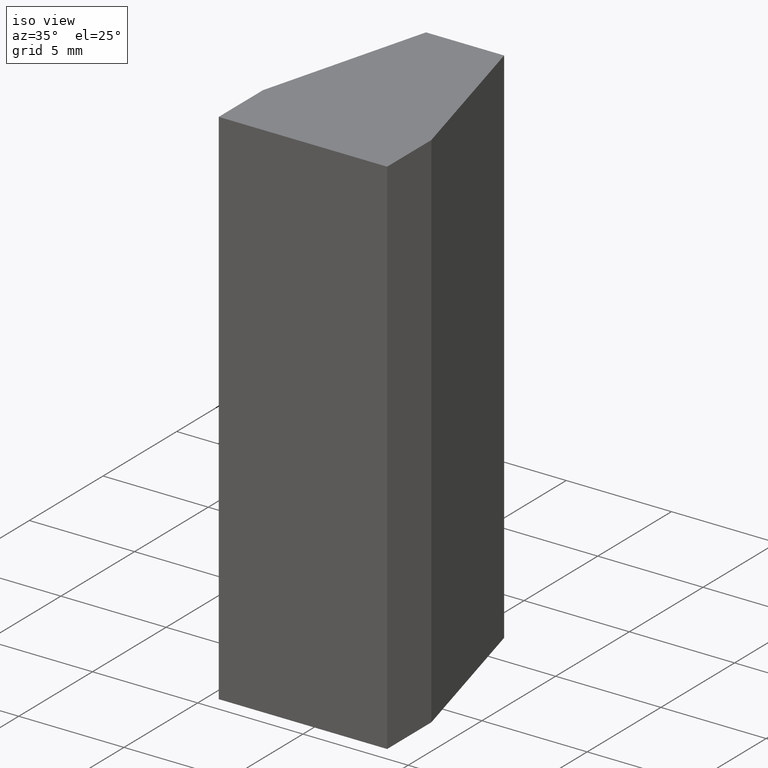
[diagram: clean part render]
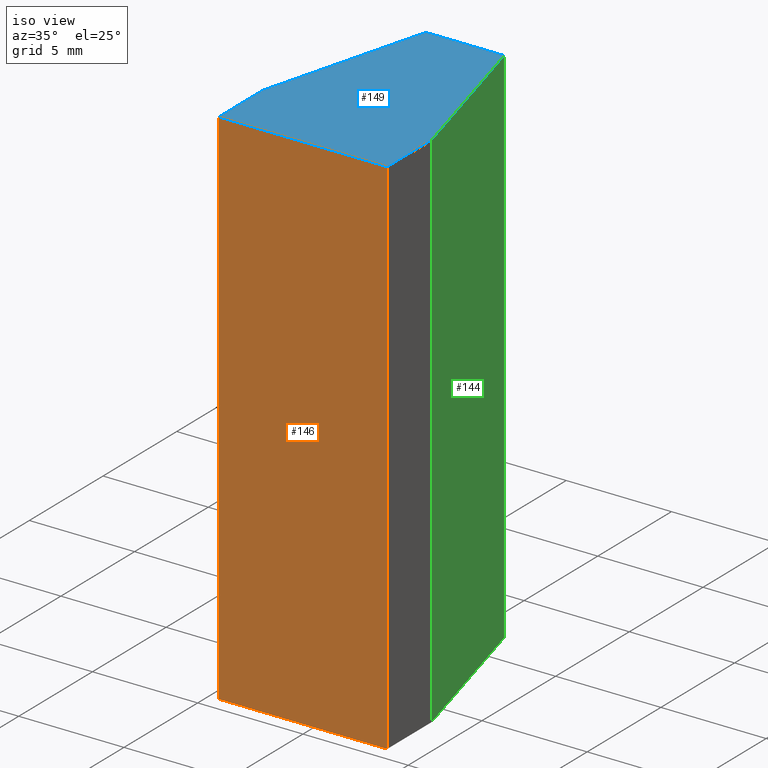
[diagram: same view with three faces highlighted in distinct colors, each labeled with its STEP entity id]
A machine part, iso view with three faces highlighted in distinct colors.
Their STEP definitions:

[orange] entity #146 — the highlighted planar face has unit normal (0, -1, 0).
#20=FACE_OUTER_BOUND('',#28,.T.);
#28=EDGE_LOOP('',(#116,#117,#118,#119));
#36=LINE('',#229,#54);
#44=LINE('',#244,#62);
#45=LINE('',#247,#63);
#46=LINE('',#248,#64);
#54=VECTOR('',#189,10.);
#62=VECTOR('',#203,10.);
#63=VECTOR('',#206,10.);
#64=VECTOR('',#207,10.);
#72=VERTEX_POINT('',#226);
#73=VERTEX_POINT('',#228);
#77=VERTEX_POINT('',#242);
#78=VERTEX_POINT('',#246);
#84=EDGE_CURVE('',#73,#72,#36,.T.);
#92=EDGE_CURVE('',#72,#77,#44,.T.);
#93=EDGE_CURVE('',#77,#78,#45,.T.);
#94=EDGE_CURVE('',#73,#78,#46,.T.);
#116=ORIENTED_EDGE('',*,*,#93,.T.);
#117=ORIENTED_EDGE('',*,*,#94,.F.);
#118=ORIENTED_EDGE('',*,*,#84,.T.);
#119=ORIENTED_EDGE('',*,*,#92,.T.);
#138=PLANE('',#177);
#146=ADVANCED_FACE('',(#20),#138,.T.);
#177=AXIS2_PLACEMENT_3D('',#245,#204,#205);
#189=DIRECTION('',(1.,-1.52486612525011E-16,0.));
#203=DIRECTION('',(0.,0.,1.));
#204=DIRECTION('center_axis',(1.52486612525011E-16,-1.,0.));
#205=DIRECTION('ref_axis',(0.,0.,-1.));
#206=DIRECTION('',(-1.,-1.52486612525011E-16,0.));
#207=DIRECTION('',(0.,0.,1.));
#226=CARTESIAN_POINT('',(4.,-5.48349377874647E-17,-12.5));
#228=CARTESIAN_POINT('',(-4.,-5.48349377874647E-17,-12.5));
#229=CARTESIAN_POINT('',(5.55111512312578E-16,5.55111512312578E-16,-12.5));
#242=CARTESIAN_POINT('',(4.,-5.48349377874647E-17,12.5));
#244=CARTESIAN_POINT('',(4.,-5.48349377874647E-17,0.));
#245=CARTESIAN_POINT('Origin',(5.55111512312578E-16,5.55111512312578E-16,
0.));
#246=CARTESIAN_POINT('',(-4.,-5.48349377874647E-17,12.5));
#247=CARTESIAN_POINT('',(-4.,-5.48349377874647E-17,12.5));
#248=CARTESIAN_POINT('',(-4.,-5.48349377874647E-17,0.));

[blue] entity #149 — the highlighted planar face has unit normal (0, 0, 1).
#23=FACE_OUTER_BOUND('',#31,.T.);
#31=EDGE_LOOP('',(#128,#129,#130,#131,#132,#133));
#38=LINE('',#234,#56);
#41=LINE('',#239,#59);
#43=LINE('',#243,#61);
#45=LINE('',#247,#63);
#47=LINE('',#251,#65);
#49=LINE('',#254,#67);
#56=VECTOR('',#193,10.);
#59=VECTOR('',#198,10.);
#61=VECTOR('',#202,10.);
#63=VECTOR('',#206,10.);
#65=VECTOR('',#210,10.);
#67=VECTOR('',#214,10.);
#74=VERTEX_POINT('',#232);
#75=VERTEX_POINT('',#233);
#76=VERTEX_POINT('',#238);
#77=VERTEX_POINT('',#242);
#78=VERTEX_POINT('',#246);
#79=VERTEX_POINT('',#250);
#86=EDGE_CURVE('',#74,#75,#38,.T.);
#89=EDGE_CURVE('',#75,#76,#41,.T.);
#91=EDGE_CURVE('',#76,#77,#43,.T.);
#93=EDGE_CURVE('',#77,#78,#45,.T.);
#95=EDGE_CURVE('',#78,#79,#47,.T.);
#97=EDGE_CURVE('',#79,#74,#49,.T.);
#128=ORIENTED_EDGE('',*,*,#86,.F.);
#129=ORIENTED_EDGE('',*,*,#97,.F.);
#130=ORIENTED_EDGE('',*,*,#95,.F.);
#131=ORIENTED_EDGE('',*,*,#93,.F.);
#132=ORIENTED_EDGE('',*,*,#91,.F.);
#133=ORIENTED_EDGE('',*,*,#89,.F.);
#141=PLANE('',#180);
#149=ADVANCED_FACE('',(#23),#141,.T.);
#180=AXIS2_PLACEMENT_3D('',#255,#215,#216);
#193=DIRECTION('',(1.,0.,0.));
#198=DIRECTION('',(0.258819045102521,-0.965925826289068,0.));
#202=DIRECTION('',(-1.85037170770859E-16,-1.,0.));
#206=DIRECTION('',(-1.,-1.52486612525011E-16,0.));
#210=DIRECTION('',(-1.85037170770859E-16,1.,0.));
#214=DIRECTION('',(0.258819045102521,0.965925826289068,0.));
#215=DIRECTION('center_axis',(0.,0.,1.));
#216=DIRECTION('ref_axis',(1.,0.,0.));
#232=CARTESIAN_POINT('',(-1.85640646055102,11.,12.5));
#233=CARTESIAN_POINT('',(1.85640646055102,11.,12.5));
#234=CARTESIAN_POINT('',(1.85640646055102,11.,12.5));
#238=CARTESIAN_POINT('',(4.,3.,12.5));
#239=CARTESIAN_POINT('',(4.,3.,12.5));
#242=CARTESIAN_POINT('',(4.,-5.48349377874647E-17,12.5));
#243=CARTESIAN_POINT('',(4.,-5.48349377874647E-17,12.5));
#246=CARTESIAN_POINT('',(-4.,-5.48349377874647E-17,12.5));
#247=CARTESIAN_POINT('',(-4.,-5.48349377874647E-17,12.5));
#250=CARTESIAN_POINT('',(-4.,3.,12.5));
#251=CARTESIAN_POINT('',(-4.,3.,12.5));
#254=CARTESIAN_POINT('',(-1.85640646055102,11.,12.5));
#255=CARTESIAN_POINT('Origin',(-1.47451495458029E-16,4.83679298457776,12.5));

[green] entity #144 — the highlighted planar face has unit normal (0.9659, 0.2588, 0).
#18=FACE_OUTER_BOUND('',#26,.T.);
#26=EDGE_LOOP('',(#108,#109,#110,#111));
#34=LINE('',#225,#52);
#39=LINE('',#235,#57);
#41=LINE('',#239,#59);
#42=LINE('',#240,#60);
#52=VECTOR('',#187,10.);
#57=VECTOR('',#194,10.);
#59=VECTOR('',#198,10.);
#60=VECTOR('',#199,10.);
#70=VERTEX_POINT('',#222);
#71=VERTEX_POINT('',#224);
#75=VERTEX_POINT('',#233);
#76=VERTEX_POINT('',#238);
#82=EDGE_CURVE('',#71,#70,#34,.T.);
#87=EDGE_CURVE('',#70,#75,#39,.T.);
#89=EDGE_CURVE('',#75,#76,#41,.T.);
#90=EDGE_CURVE('',#71,#76,#42,.T.);
#108=ORIENTED_EDGE('',*,*,#89,.T.);
#109=ORIENTED_EDGE('',*,*,#90,.F.);
#110=ORIENTED_EDGE('',*,*,#82,.T.);
#111=ORIENTED_EDGE('',*,*,#87,.T.);
#136=PLANE('',#175);
#144=ADVANCED_FACE('',(#18),#136,.T.);
#175=AXIS2_PLACEMENT_3D('',#237,#196,#197);
#187=DIRECTION('',(-0.258819045102521,0.965925826289068,0.));
#194=DIRECTION('',(0.,0.,1.));
#196=DIRECTION('center_axis',(0.965925826289068,0.258819045102521,0.));
#197=DIRECTION('ref_axis',(0.,0.,-1.));
#198=DIRECTION('',(0.258819045102521,-0.965925826289068,0.));
#199=DIRECTION('',(0.,0.,1.));
#222=CARTESIAN_POINT('',(1.85640646055102,11.,-12.5));
#224=CARTESIAN_POINT('',(4.,3.,-12.5));
#225=CARTESIAN_POINT('',(4.,3.,-12.5));
#233=CARTESIAN_POINT('',(1.85640646055102,11.,12.5));
#235=CARTESIAN_POINT('',(1.85640646055102,11.,0.));
#237=CARTESIAN_POINT('Origin',(1.85640646055102,11.,0.));
#238=CARTESIAN_POINT('',(4.,3.,12.5));
#239=CARTESIAN_POINT('',(4.,3.,12.5));
#240=CARTESIAN_POINT('',(4.,3.,0.));